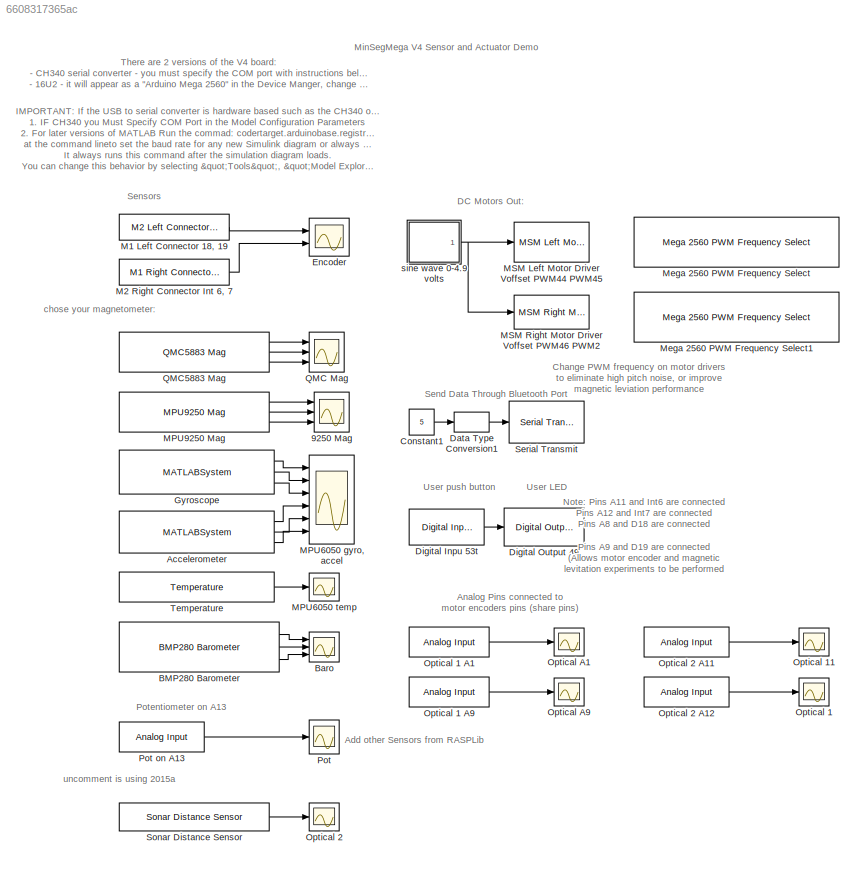
MODEL slx_6608317365ac
KIND model
CONFIG AbsTol = auto
CONFIG FixedStep = auto
CONFIG MaxStep = auto
CONFIG MinStep = auto
CONFIG PostLoadFcn = try, \ncodertarget.arduinobase.registry.setBaudRate(gcs,115200)\ndisp('baud rate set to 115200 for external mode hardware serial')\nbaudrate='set_to_115200'\ncatch\ndisp('baud rate setting not needed in this version')\nend
CONFIG RelTol = 1e-3
CONFIG SampleTimeConstraint = Unconstrained
CONFIG Solver = ode45
CONFIG SolverMode = Auto
CONFIG SolverName = ode45
CONFIG StartTime = 0.0
CONFIG StopTime = 10.0
BLOCK [Scope] 9250 Mag
  Commented = on
  DataFormat = StructureWithTime
  Floating = off
  NumInputPorts = 3
  Ports = [3]
  SampleTime = 0
  SaveName = ScopeData7
  TimeRange = 30
  YMax = 200~200~200
  YMin = -200~-200~-200
BLOCK [MATLABSystem] Accelerometer
  MaskDisplay = disp('soMPU6050Accel');\nport_label('output',1,'xaccel');\nport_label('output',2,'yaccel');\nport_label('output',3,'zaccel');
  MaskType = soMPU6050Accel
  Ports = [0, 3]
  SimulateUsing = Code generation
  System = soMPU6050Accel
BLOCK [Reference] BMP280 Barometer  REF=RASPlib/BMP280 Barometer
  Commented = on
  Ports = [0, 3]
  SimulateUsing = Code generation
  SourceBlock = RASPlib/BMP280 Barometer
  SourceType = soBMP280
BLOCK [Scope] Baro
  Commented = on
  DataFormat = StructureWithTime
  Floating = off
  NumInputPorts = 3
  Ports = [3]
  SampleTime = 0
  SaveName = ScopeData2
  TimeRange = 10
  YMax = 100685~55.25~28.55
  YMin = 100663~53.25~28.42
BLOCK [Constant] Constant1
  SampleTime = -1
  Value = 5
BLOCK [DataTypeConversion] Data Type Conversion1
  OutDataTypeStr = uint8
  RndMeth = Floor
  SaturateOnIntegerOverflow = off
BLOCK [Reference] Digital Inpu 53t  REF=arduinolib/Digital Input
  Ports = [0, 1]
  SourceBlock = arduinolib/Digital Input
  SourceType = Arduino Digital Input
  blockPlatform = arduino
  pinNumber = 53
  sampleTime = -1
BLOCK [Reference] Digital Output 49  REF=arduinolib/Digital Output
  Ports = [1]
  SourceBlock = arduinolib/Digital Output
  SourceType = Arduino Digital Output
  blockPlatform = arduino
  pinNumber = 49
BLOCK [Scope] Encoder
  DataFormat = StructureWithTime
  Floating = off
  NumInputPorts = 2
  Ports = [2]
  SampleTime = 0
  TimeRange = 30
  YMax = 1000~1000
  YMin = -1000~-1000
BLOCK [MATLABSystem] Gyroscope
  DLPFmode = 0
  MaskDisplay = disp('soMPU6050Gyro');\nport_label('output',1,'xvel');\nport_label('output',2,'yvel');\nport_label('output',3,'zvel');
  MaskType = soMPU6050Gyro
  Ports = [0, 3]
  System = soMPU6050Gyro
BLOCK [Reference] M1 Left Connector 18, 19  REF=MinSegLibrary_MinSegMega/M2 Left Connector 18, 19
  Encoder = 1
  PinA = 19
  PinB = 18
  Ports = [0, 1]
  SourceBlock = MinSegLibrary_MinSegMega/M2 Left Connector 18, 19
  SourceType = Encoder_arduino
BLOCK [Reference] M2 Right Connector Int 6, 7  REF=MinSegLibrary_MinSegMega/M1 Right Connector Int 6, 7
  Encoder = 2
  PinA = 6
  PinB = 7
  Ports = [0, 1]
  SourceBlock = MinSegLibrary_MinSegMega/M1 Right Connector Int 6, 7
  SourceType = Encoder_arduino
BLOCK [Scope] MPU6050 gyro, accel
  DataFormat = StructureWithTime
  Floating = off
  NumInputPorts = 6
  Ports = [6]
  SampleTime = 0
  SaveName = ScopeData1
  TimeRange = 30
  YMax = 30000~30000~30000~15000~15000~30000
  YMin = -30000~-30000~-30000~-15000~-15000~-15000
BLOCK [Scope] MPU6050 temp
  DataFormat = StructureWithTime
  Floating = off
  NumInputPorts = 1
  Ports = [1]
  SampleTime = 0
  SaveName = ScopeData5
  TimeRange = 30
  YMax = 0
  YMin = -3000
BLOCK [Reference] MPU9250 Mag  REF=RASPlib/MPU9250 Mag
  Commented = on
  Ports = [0, 3]
  SimulateUsing = Code generation
  SourceBlock = RASPlib/MPU9250 Mag
  SourceType = soMPU9250Mag
BLOCK [Reference] MSM Left Motor Driver Voffset PWM44 PWM45  REF=MinSegLibrary_MinSegMega/MSM Left Motor Driver
Voffset PWM44 PWM45
  Ports = [1]
  SourceBlock = MinSegLibrary_MinSegMega/MSM Left Motor Driver\nVoffset PWM44 PWM45
  Voffset = 0
  Vsupply = 4.9
BLOCK [Reference] MSM Right Motor Driver Voffset PWM46 PWM2   REF=MinSegLibrary_MinSegMega/MSM Right Motor Driver
Voffset PWM46 PWM2

  Ports = [1]
  SourceBlock = MinSegLibrary_MinSegMega/MSM Right Motor Driver\nVoffset PWM46 PWM2
  Voffset = 0
  Vsupply = 4.9
BLOCK [Reference] Mega 2560 PWM Frequency Select  REF=RASPlib/Mega 2560 PWM Frequency Select
  Commented = on
  Frequency = 32KHz
  Ports = []
  SourceBlock = RASPlib/Mega 2560 PWM Frequency Select
  Timer = 5 - pins 44, 45, 46
BLOCK [Reference] Mega 2560 PWM Frequency Select1  REF=RASPlib/Mega 2560 PWM Frequency Select
  Commented = on
  Frequency = 32KHz
  Ports = []
  SourceBlock = RASPlib/Mega 2560 PWM Frequency Select
  Timer = 3 - pins 2, 3, 5
BLOCK [Scope] Optical 1
  DataFormat = StructureWithTime
  Floating = off
  NumInputPorts = 1
  Ports = [1]
  SampleTime = 0
  SaveName = ScopeData8
  TimeRange = 30
  YMax = 1100
  YMin = 300
BLOCK [Reference] Optical 1 A1  REF=arduinolib/Analog Input
  Ports = [0, 1]
  SourceBlock = arduinolib/Analog Input
  SourceType = Arduino Analog Input
  blockPlatform = arduino
  pinNumber = 8
  sampleTime = -1
BLOCK [Reference] Optical 1 A9  REF=arduinolib/Analog Input
  Ports = [0, 1]
  SourceBlock = arduinolib/Analog Input
  SourceType = Arduino Analog Input
  blockPlatform = arduino
  pinNumber = 9
  sampleTime = -1
BLOCK [Scope] Optical 11
  DataFormat = StructureWithTime
  Floating = off
  NumInputPorts = 1
  Ports = [1]
  SampleTime = 0
  SaveName = ScopeData4
  TimeRange = 30
  YMax = 1100
  YMin = 300
BLOCK [Scope] Optical 2
  Commented = on
  DataFormat = StructureWithTime
  Floating = off
  NumInputPorts = 1
  Ports = [1]
  SampleTime = 0
  SaveName = ScopeData10
  TimeRange = 30
  YMax = 100
  YMin = 0
BLOCK [Reference] Optical 2 A11  REF=arduinolib/Analog Input
  Ports = [0, 1]
  SourceBlock = arduinolib/Analog Input
  SourceType = Arduino Analog Input
  blockPlatform = arduino
  pinNumber = 11
  sampleTime = -1
BLOCK [Reference] Optical 2 A12  REF=arduinolib/Analog Input
  Ports = [0, 1]
  SourceBlock = arduinolib/Analog Input
  SourceType = Arduino Analog Input
  blockPlatform = arduino
  pinNumber = 12
  sampleTime = -1
BLOCK [Scope] Optical A1
  DataFormat = StructureWithTime
  Floating = off
  NumInputPorts = 1
  Ports = [1]
  SampleTime = 0
  SaveName = ScopeData9
  TimeRange = 30
  YMax = 1000
  YMin = 0
BLOCK [Scope] Optical A9
  DataFormat = StructureWithTime
  Floating = off
  NumInputPorts = 1
  Ports = [1]
  SampleTime = 0
  SaveName = ScopeData3
  TimeRange = 30
  YMax = 1000
  YMin = 0
BLOCK [Scope] Pot
  DataFormat = StructureWithTime
  Floating = off
  NumInputPorts = 1
  Ports = [1]
  SampleTime = 0
  SaveName = ScopeData6
  TimeRange = 30
  YMax = 1250
  YMin = 0
BLOCK [Reference] Pot on A13  REF=arduinolib/Analog Input
  Ports = [0, 1]
  SourceBlock = arduinolib/Analog Input
  SourceType = Arduino Analog Input
  blockPlatform = arduino
  pinNumber = 13
  sampleTime = -1
BLOCK [Scope] QMC Mag
  DataFormat = StructureWithTime
  Floating = off
  NumInputPorts = 3
  Ports = [3]
  SampleTime = 0
  SaveName = ScopeData11
  TimeRange = 30
  YMax = 1500~1500~1500
  YMin = -1500~-1500~-1500
BLOCK [Reference] QMC5883 Mag  REF=RASPlib/QMC5883 Mag
  Ports = [0, 3]
  SimulateUsing = Code generation
  SourceBlock = RASPlib/QMC5883 Mag
  SourceType = soQMC5883L
BLOCK [Reference] Serial Transmit  REF=arduinolib/Serial Transmit
  Ports = [1]
  SourceBlock = arduinolib/Serial Transmit
  SourceType = Arduino Serial Transmit
  blockPlatform = arduino
  portNumber = 3
BLOCK [Reference] Sonar Distance Sensor  REF=RASPlib/Sonar Distance Sensor
  Commented = on
  EchoPin = 17
  Ports = [0, 1]
  Sonar = 1
  SourceBlock = RASPlib/Sonar Distance Sensor
  SourceType = soHCSR04Sonar
  TrigPin = 16
BLOCK [Reference] Temperature  REF=RASPlib/Temperature
  Ports = [0, 1]
  SimulateUsing = Code generation
  SourceBlock = RASPlib/Temperature
  SourceType = soMPU6050Temp
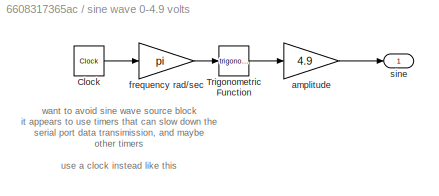
BLOCK [SubSystem] sine wave 0-4.9 volts
  Ports = [0, 1]
  RequestExecContextInheritance = off
BLOCK [Clock] sine wave 0-4.9 volts/Clock
BLOCK [Trigonometry] sine wave 0-4.9 volts/Trigonometric Function
  Ports = [1, 1]
BLOCK [Gain] sine wave 0-4.9 volts/amplitude
  Gain = 4.9
  OutDataTypeStr = Inherit: Inherit via internal rule
  ParamDataTypeStr = Inherit: Inherit via internal rule
  SaturateOnIntegerOverflow = off
BLOCK [Gain] sine wave 0-4.9 volts/frequency rad//sec
  Gain = pi
  OutDataTypeStr = Inherit: Inherit via internal rule
  ParamDataTypeStr = Inherit: Inherit via internal rule
  SaturateOnIntegerOverflow = off
BLOCK [Outport] sine wave 0-4.9 volts/sine
  IconDisplay = Port number
ANNOTATION (root): IMPORTANT : If the USB to serial converter is hardware based such as the CH340 or the PL2303 you must: 1. IF CH340 you Must Specify COM Port in the Model Configuration Parameters 2. For later versions of MATLAB Run the commad: codertarget.arduinobase.registry.setBaudRate(gcs,115200) at the command lineto set the baud rate for any new Simulink diagram or always use this file to start new projects. ...<+159ch>
ANNOTATION (root): chose your magnetometer:
ANNOTATION (root): Add other Sensors from RASPLib
ANNOTATION (root): Analog Pins connected to motor encoders pins (share pins)
ANNOTATION (root): Change PWM frequency on motor drivers to eliminate high pitch noise, or improve magnetic leviation performance
ANNOTATION (root): DC Motors Out:
ANNOTATION (root): MinSegMega V4 Sensor and Actuator Demo
ANNOTATION (root): Note: Pins A11 and Int6 are connected Pins A12 and Int7 are connected Pins A8 and D18 are connected Pins A9 and D19 are connected (Allows motor encoder and magnetic levitation experiments to be performed with the same header)
ANNOTATION (root): Potentiometer on A13
ANNOTATION (root): Send Data Through Bluetooth Port
ANNOTATION (root): Sensors
ANNOTATION (root): There are 2 versions of the V4 board: - CH340 serial converter - you must specify the COM port with instructions below. Shows up as "USB-Serial CH340" - 16U2 - it will appear as a "Arduino Mega 2560" in the Device Manger, change COM port to "Automatic" in Device Settings
ANNOTATION (root): User LED
ANNOTATION (root): User push button
ANNOTATION (root): uncomment is using 2015a
ANNOTATION sine wave 0-4.9 volts: want to avoid sine wave source block it appears to use timers that can slow down the serial port data transimission, and maybe other timers use a clock instead like this
LINE Accelerometer:1 -> MPU6050 gyro, accel:4
LINE Accelerometer:2 -> MPU6050 gyro, accel:5
LINE Accelerometer:3 -> MPU6050 gyro, accel:6
LINE BMP280 Barometer:1 -> Baro:1
LINE BMP280 Barometer:2 -> Baro:2
LINE BMP280 Barometer:3 -> Baro:3
LINE Constant1:1 -> Data Type Conversion1:1
LINE Data Type Conversion1:1 -> Serial Transmit:1
LINE Digital Inpu 53t:1 -> Digital Output 49:1
LINE Gyroscope:1 -> MPU6050 gyro, accel:1
LINE Gyroscope:2 -> MPU6050 gyro, accel:2
LINE Gyroscope:3 -> MPU6050 gyro, accel:3
LINE M1 Left Connector 18, 19:1 -> Encoder:1
LINE M2 Right Connector Int 6, 7:1 -> Encoder:2
LINE MPU9250 Mag:1 -> 9250 Mag:1
LINE MPU9250 Mag:2 -> 9250 Mag:2
LINE MPU9250 Mag:3 -> 9250 Mag:3
LINE Optical 1 A1:1 -> Optical A1:1
LINE Optical 1 A9:1 -> Optical A9:1
LINE Optical 2 A11:1 -> Optical 11:1
LINE Optical 2 A12:1 -> Optical 1:1
LINE Pot on A13:1 -> Pot:1
LINE QMC5883 Mag:1 -> QMC Mag:1
LINE QMC5883 Mag:2 -> QMC Mag:2
LINE QMC5883 Mag:3 -> QMC Mag:3
LINE Sonar Distance Sensor:1 -> Optical 2:1
LINE Temperature:1 -> MPU6050 temp:1
LINE sine wave 0-4.9 volts/Clock:1 -> sine wave 0-4.9 volts/frequency rad//sec:1
LINE sine wave 0-4.9 volts/Trigonometric Function:1 -> sine wave 0-4.9 volts/amplitude:1
LINE sine wave 0-4.9 volts/amplitude:1 -> sine wave 0-4.9 volts/sine:1
LINE sine wave 0-4.9 volts/frequency rad//sec:1 -> sine wave 0-4.9 volts/Trigonometric Function:1
NET sine wave 0-4.9 volts:1 -> MSM Left Motor Driver Voffset PWM44 PWM45:1, MSM Right Motor Driver Voffset PWM46 PWM2 :1
note: NET lines group one-source signal fan-out (src -> all destinations, sorted); 1:1 wires keep LINE
